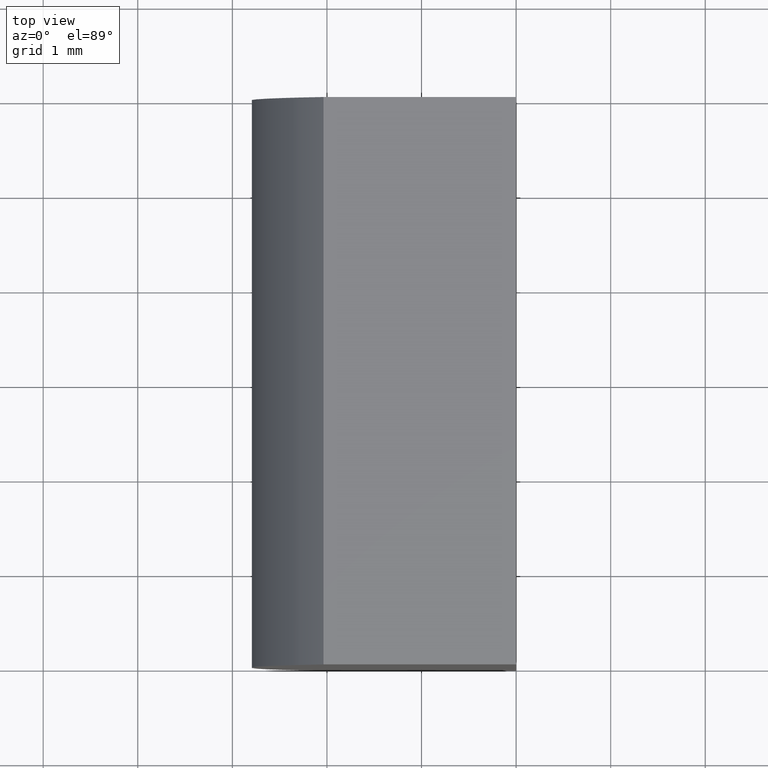
[diagram: clean part render]
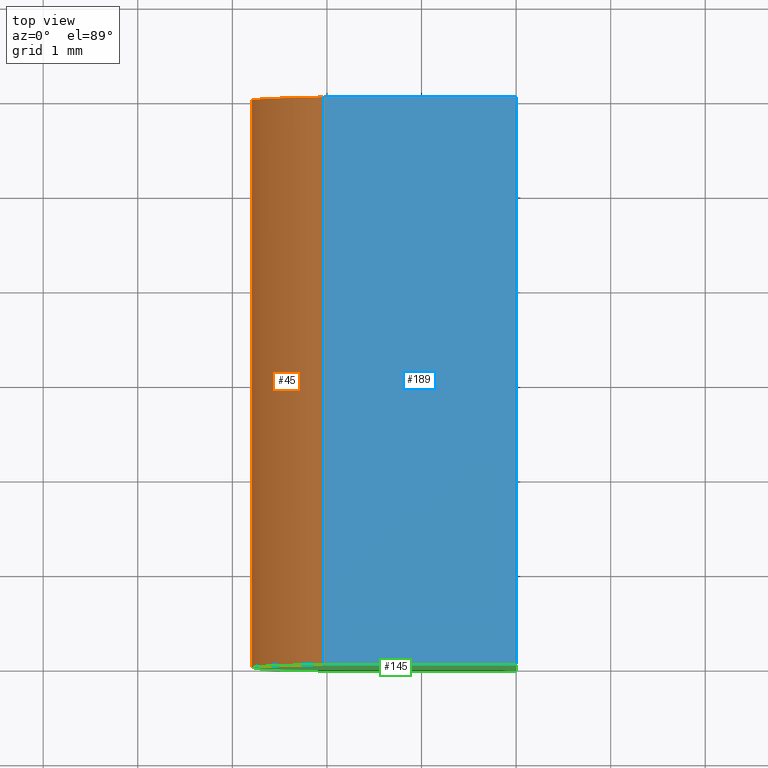
[diagram: same view with three faces highlighted in distinct colors, each labeled with its STEP entity id]
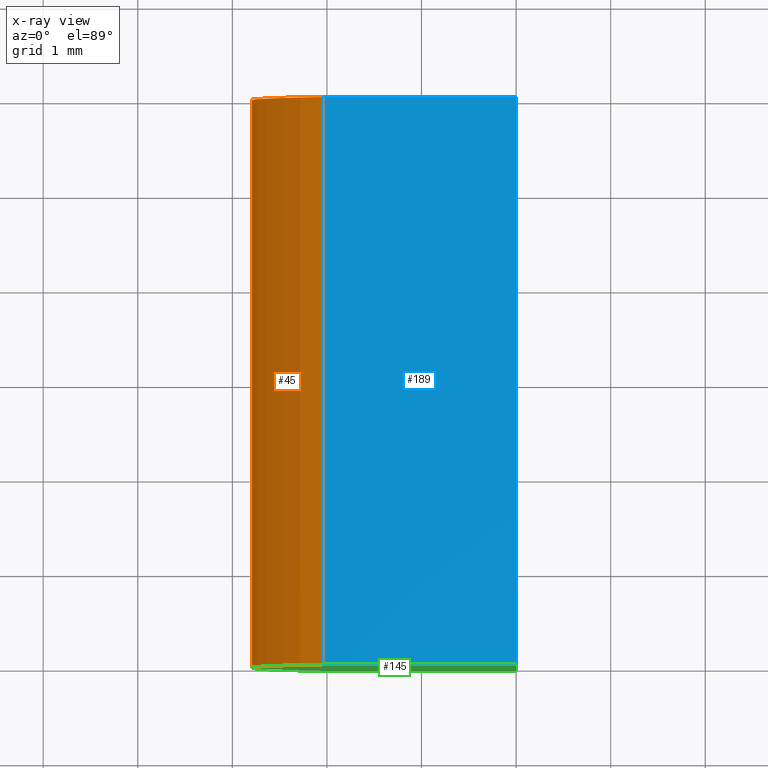
[diagram: x-ray of the same camera — body ghosted, the three highlighted faces saturated]
A machine part, top view with three faces highlighted in distinct colors.
The next image is the same camera in x-ray (body ghosted, the three faces saturated) — at least one of them is partly hidden behind the body in this view.
Their STEP definitions:

[orange] entity #45 — the highlighted cylindrical surface (partial cylindrical patch) has radius 3 mm, axis along (-0, -1, -0).
#2 = DIRECTION ( 'NONE',  ( 0.0000000000000000000, 1.000000000000000000, 0.0000000000000000000 ) ) ;
#6 = DIRECTION ( 'NONE',  ( 0.0000000000000000000, 0.0000000000000000000, -1.000000000000000000 ) ) ;
#9 = CARTESIAN_POINT ( 'NONE',  ( 0.2000000000000005100, 6.000000000000000000, 2.000000000000000000 ) ) ;
#10 = DIRECTION ( 'NONE',  ( -0.0000000000000000000, -1.000000000000000000, -0.0000000000000000000 ) ) ;
#15 = CARTESIAN_POINT ( 'NONE',  ( -2.036067977499789600, 6.000000000000000000, 4.000000000000000000 ) ) ;
#16 = ORIENTED_EDGE ( 'NONE', *, *, #75, .F. ) ;
#26 = AXIS2_PLACEMENT_3D ( 'NONE', #149, #2, #197 ) ;
#30 = EDGE_LOOP ( 'NONE', ( #114, #187, #16, #175 ) ) ;
#44 = CYLINDRICAL_SURFACE ( 'NONE', #71, 3.000000000000000400 ) ;
#45 = ADVANCED_FACE ( 'NONE', ( #178 ), #44, .T. ) ;
#52 = LINE ( 'NONE', #15, #113 ) ;
#57 = DIRECTION ( 'NONE',  ( 0.0000000000000000000, 0.0000000000000000000, 1.000000000000000000 ) ) ;
#58 = DIRECTION ( 'NONE',  ( 0.0000000000000000000, 1.000000000000000000, 0.0000000000000000000 ) ) ;
#59 = CARTESIAN_POINT ( 'NONE',  ( 0.2000000000000005100, 6.000000000000000000, 2.000000000000000000 ) ) ;
#68 = CARTESIAN_POINT ( 'NONE',  ( -2.036067977499789200, 6.000000000000000000, 0.0000000000000000000 ) ) ;
#71 = AXIS2_PLACEMENT_3D ( 'NONE', #59, #204, #6 ) ;
#75 = EDGE_CURVE ( 'NONE', #162, #133, #130, .T. ) ;
#76 = CARTESIAN_POINT ( 'NONE',  ( -2.036067977499789200, 6.000000000000000000, 0.0000000000000000000 ) ) ;
#88 = CARTESIAN_POINT ( 'NONE',  ( -2.036067977499789600, 0.0000000000000000000, 4.000000000000000000 ) ) ;
#109 = DIRECTION ( 'NONE',  ( -0.0000000000000000000, -1.000000000000000000, -0.0000000000000000000 ) ) ;
#112 = LINE ( 'NONE', #76, #138 ) ;
#113 = VECTOR ( 'NONE', #109, 1000.000000000000000 ) ;
#114 = ORIENTED_EDGE ( 'NONE', *, *, #190, .T. ) ;
#116 = CARTESIAN_POINT ( 'NONE',  ( -2.036067977499789200, 0.0000000000000000000, 0.0000000000000000000 ) ) ;
#122 = VERTEX_POINT ( 'NONE', #116 ) ;
#130 = CIRCLE ( 'NONE', #195, 3.000000000000000900 ) ;
#133 = VERTEX_POINT ( 'NONE', #203 ) ;
#138 = VECTOR ( 'NONE', #10, 1000.000000000000000 ) ;
#141 = VERTEX_POINT ( 'NONE', #88 ) ;
#149 = CARTESIAN_POINT ( 'NONE',  ( 0.2000000000000005100, 0.0000000000000000000, 2.000000000000000000 ) ) ;
#152 = CIRCLE ( 'NONE', #26, 3.000000000000000900 ) ;
#157 = EDGE_CURVE ( 'NONE', #133, #141, #52, .T. ) ;
#162 = VERTEX_POINT ( 'NONE', #68 ) ;
#168 = EDGE_CURVE ( 'NONE', #162, #122, #112, .T. ) ;
#175 = ORIENTED_EDGE ( 'NONE', *, *, #168, .T. ) ;
#178 = FACE_OUTER_BOUND ( 'NONE', #30, .T. ) ;
#187 = ORIENTED_EDGE ( 'NONE', *, *, #157, .F. ) ;
#190 = EDGE_CURVE ( 'NONE', #122, #141, #152, .T. ) ;
#195 = AXIS2_PLACEMENT_3D ( 'NONE', #9, #58, #57 ) ;
#197 = DIRECTION ( 'NONE',  ( 0.0000000000000000000, 0.0000000000000000000, 1.000000000000000000 ) ) ;
#203 = CARTESIAN_POINT ( 'NONE',  ( -2.036067977499789600, 6.000000000000000000, 4.000000000000000000 ) ) ;
#204 = DIRECTION ( 'NONE',  ( -0.0000000000000000000, -1.000000000000000000, -0.0000000000000000000 ) ) ;

[blue] entity #189 — the highlighted planar face has unit normal (0, 0, -1).
#1 = DIRECTION ( 'NONE',  ( -0.0000000000000000000, -1.000000000000000000, -0.0000000000000000000 ) ) ;
#8 = VECTOR ( 'NONE', #1, 1000.000000000000000 ) ;
#15 = CARTESIAN_POINT ( 'NONE',  ( -2.036067977499789600, 6.000000000000000000, 4.000000000000000000 ) ) ;
#19 = CARTESIAN_POINT ( 'NONE',  ( 0.0000000000000000000, 6.000000000000000000, 4.000000000000000000 ) ) ;
#20 = LINE ( 'NONE', #151, #8 ) ;
#27 = EDGE_CURVE ( 'NONE', #133, #169, #115, .T. ) ;
#29 = ORIENTED_EDGE ( 'NONE', *, *, #157, .T. ) ;
#34 = VECTOR ( 'NONE', #81, 1000.000000000000000 ) ;
#42 = EDGE_CURVE ( 'NONE', #141, #73, #43, .T. ) ;
#43 = LINE ( 'NONE', #83, #34 ) ;
#46 = EDGE_CURVE ( 'NONE', #169, #73, #20, .T. ) ;
#52 = LINE ( 'NONE', #15, #113 ) ;
#69 = ORIENTED_EDGE ( 'NONE', *, *, #27, .F. ) ;
#73 = VERTEX_POINT ( 'NONE', #198 ) ;
#78 = CARTESIAN_POINT ( 'NONE',  ( 0.0000000000000000000, 6.000000000000000000, 4.000000000000000000 ) ) ;
#81 = DIRECTION ( 'NONE',  ( 1.000000000000000000, -0.0000000000000000000, -0.0000000000000000000 ) ) ;
#83 = CARTESIAN_POINT ( 'NONE',  ( 0.0000000000000000000, 0.0000000000000000000, 4.000000000000000000 ) ) ;
#84 = EDGE_LOOP ( 'NONE', ( #154, #179, #69, #29 ) ) ;
#88 = CARTESIAN_POINT ( 'NONE',  ( -2.036067977499789600, 0.0000000000000000000, 4.000000000000000000 ) ) ;
#102 = DIRECTION ( 'NONE',  ( -1.000000000000000000, 0.0000000000000000000, -0.0000000000000000000 ) ) ;
#109 = DIRECTION ( 'NONE',  ( -0.0000000000000000000, -1.000000000000000000, -0.0000000000000000000 ) ) ;
#113 = VECTOR ( 'NONE', #109, 1000.000000000000000 ) ;
#115 = LINE ( 'NONE', #19, #128 ) ;
#117 = FACE_OUTER_BOUND ( 'NONE', #84, .T. ) ;
#128 = VECTOR ( 'NONE', #171, 1000.000000000000000 ) ;
#133 = VERTEX_POINT ( 'NONE', #203 ) ;
#134 = DIRECTION ( 'NONE',  ( 0.0000000000000000000, 0.0000000000000000000, -1.000000000000000000 ) ) ;
#141 = VERTEX_POINT ( 'NONE', #88 ) ;
#143 = CARTESIAN_POINT ( 'NONE',  ( 0.0000000000000000000, 6.000000000000000000, 4.000000000000000000 ) ) ;
#151 = CARTESIAN_POINT ( 'NONE',  ( 0.0000000000000000000, 6.000000000000000000, 4.000000000000000000 ) ) ;
#153 = AXIS2_PLACEMENT_3D ( 'NONE', #78, #134, #102 ) ;
#154 = ORIENTED_EDGE ( 'NONE', *, *, #42, .T. ) ;
#157 = EDGE_CURVE ( 'NONE', #133, #141, #52, .T. ) ;
#169 = VERTEX_POINT ( 'NONE', #143 ) ;
#171 = DIRECTION ( 'NONE',  ( 1.000000000000000000, -0.0000000000000000000, -0.0000000000000000000 ) ) ;
#177 = PLANE ( 'NONE',  #153 ) ;
#179 = ORIENTED_EDGE ( 'NONE', *, *, #46, .F. ) ;
#189 = ADVANCED_FACE ( 'NONE', ( #117 ), #177, .F. ) ;
#198 = CARTESIAN_POINT ( 'NONE',  ( 0.0000000000000000000, 0.0000000000000000000, 4.000000000000000000 ) ) ;
#203 = CARTESIAN_POINT ( 'NONE',  ( -2.036067977499789600, 6.000000000000000000, 4.000000000000000000 ) ) ;

[green] entity #145 — the highlighted planar face has unit normal (0, 1, 0).
#2 = DIRECTION ( 'NONE',  ( 0.0000000000000000000, 1.000000000000000000, 0.0000000000000000000 ) ) ;
#11 = CARTESIAN_POINT ( 'NONE',  ( 0.0000000000000000000, 0.0000000000000000000, 0.0000000000000000000 ) ) ;
#18 = DIRECTION ( 'NONE',  ( 0.0000000000000000000, -0.0000000000000000000, 1.000000000000000000 ) ) ;
#22 = LINE ( 'NONE', #202, #25 ) ;
#25 = VECTOR ( 'NONE', #196, 1000.000000000000000 ) ;
#26 = AXIS2_PLACEMENT_3D ( 'NONE', #149, #2, #197 ) ;
#34 = VECTOR ( 'NONE', #81, 1000.000000000000000 ) ;
#36 = PLANE ( 'NONE',  #94 ) ;
#39 = DIRECTION ( 'NONE',  ( -0.0000000000000000000, -0.0000000000000000000, -1.000000000000000000 ) ) ;
#42 = EDGE_CURVE ( 'NONE', #141, #73, #43, .T. ) ;
#43 = LINE ( 'NONE', #83, #34 ) ;
#49 = EDGE_LOOP ( 'NONE', ( #100, #183, #160, #121 ) ) ;
#50 = EDGE_CURVE ( 'NONE', #170, #122, #22, .T. ) ;
#73 = VERTEX_POINT ( 'NONE', #198 ) ;
#81 = DIRECTION ( 'NONE',  ( 1.000000000000000000, -0.0000000000000000000, -0.0000000000000000000 ) ) ;
#83 = CARTESIAN_POINT ( 'NONE',  ( 0.0000000000000000000, 0.0000000000000000000, 4.000000000000000000 ) ) ;
#88 = CARTESIAN_POINT ( 'NONE',  ( -2.036067977499789600, 0.0000000000000000000, 4.000000000000000000 ) ) ;
#94 = AXIS2_PLACEMENT_3D ( 'NONE', #192, #142, #18 ) ;
#100 = ORIENTED_EDGE ( 'NONE', *, *, #50, .F. ) ;
#107 = CARTESIAN_POINT ( 'NONE',  ( 0.0000000000000000000, 0.0000000000000000000, 0.0000000000000000000 ) ) ;
#116 = CARTESIAN_POINT ( 'NONE',  ( -2.036067977499789200, 0.0000000000000000000, 0.0000000000000000000 ) ) ;
#119 = FACE_OUTER_BOUND ( 'NONE', #49, .T. ) ;
#121 = ORIENTED_EDGE ( 'NONE', *, *, #190, .F. ) ;
#122 = VERTEX_POINT ( 'NONE', #116 ) ;
#141 = VERTEX_POINT ( 'NONE', #88 ) ;
#142 = DIRECTION ( 'NONE',  ( 0.0000000000000000000, 1.000000000000000000, 0.0000000000000000000 ) ) ;
#145 = ADVANCED_FACE ( 'NONE', ( #119 ), #36, .F. ) ;
#146 = VECTOR ( 'NONE', #39, 1000.000000000000000 ) ;
#149 = CARTESIAN_POINT ( 'NONE',  ( 0.2000000000000005100, 0.0000000000000000000, 2.000000000000000000 ) ) ;
#152 = CIRCLE ( 'NONE', #26, 3.000000000000000900 ) ;
#160 = ORIENTED_EDGE ( 'NONE', *, *, #42, .F. ) ;
#164 = LINE ( 'NONE', #107, #146 ) ;
#167 = EDGE_CURVE ( 'NONE', #73, #170, #164, .T. ) ;
#170 = VERTEX_POINT ( 'NONE', #11 ) ;
#183 = ORIENTED_EDGE ( 'NONE', *, *, #167, .F. ) ;
#190 = EDGE_CURVE ( 'NONE', #122, #141, #152, .T. ) ;
#192 = CARTESIAN_POINT ( 'NONE',  ( 0.2000000000000005100, 0.0000000000000000000, 2.000000000000000000 ) ) ;
#196 = DIRECTION ( 'NONE',  ( -1.000000000000000000, 0.0000000000000000000, 0.0000000000000000000 ) ) ;
#197 = DIRECTION ( 'NONE',  ( 0.0000000000000000000, 0.0000000000000000000, 1.000000000000000000 ) ) ;
#198 = CARTESIAN_POINT ( 'NONE',  ( 0.0000000000000000000, 0.0000000000000000000, 4.000000000000000000 ) ) ;
#202 = CARTESIAN_POINT ( 'NONE',  ( 0.0000000000000000000, 0.0000000000000000000, 0.0000000000000000000 ) ) ;